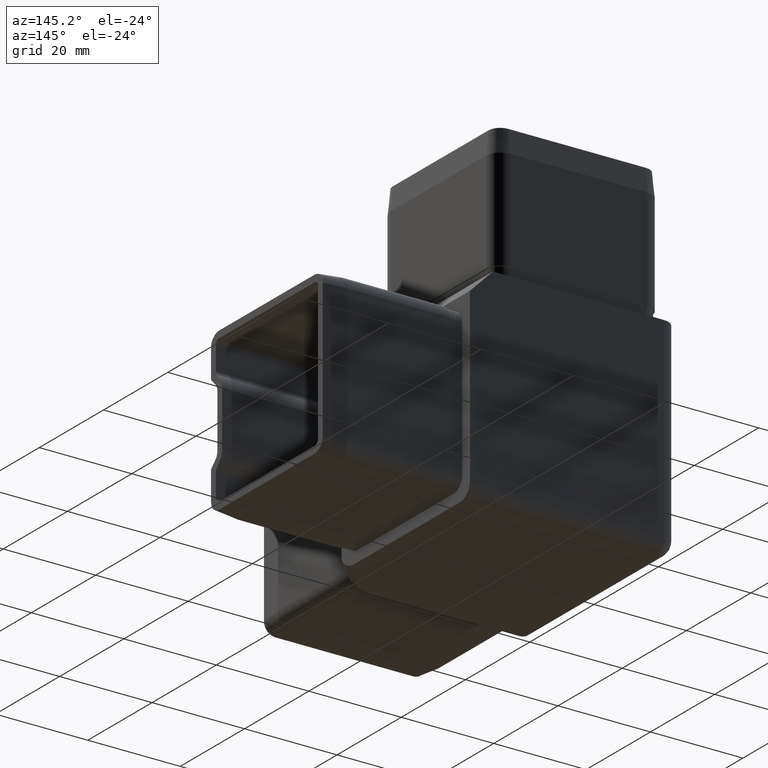
[diagram: clean part render]
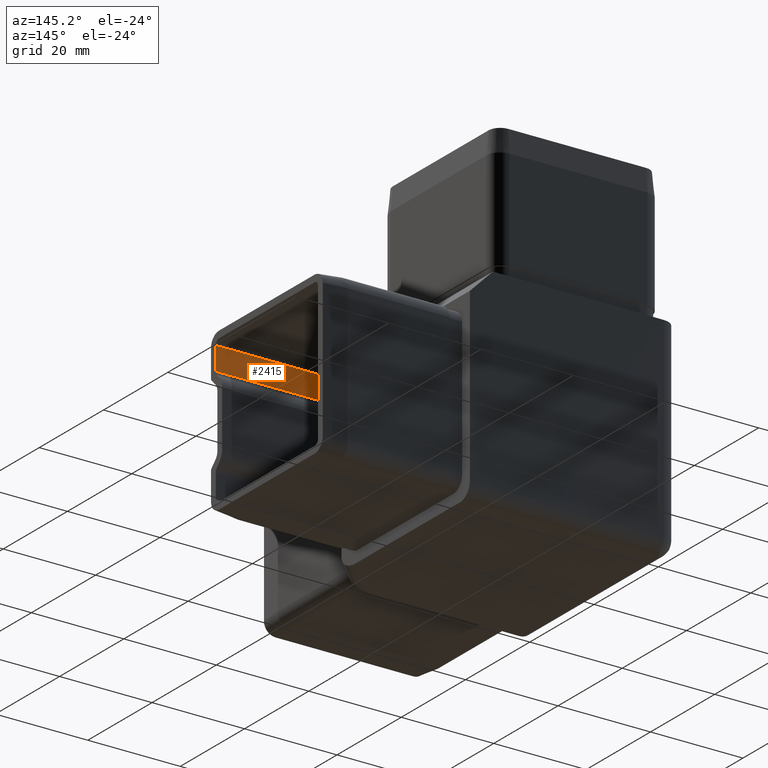
[diagram: same view with one face highlighted and labeled with its STEP entity id]
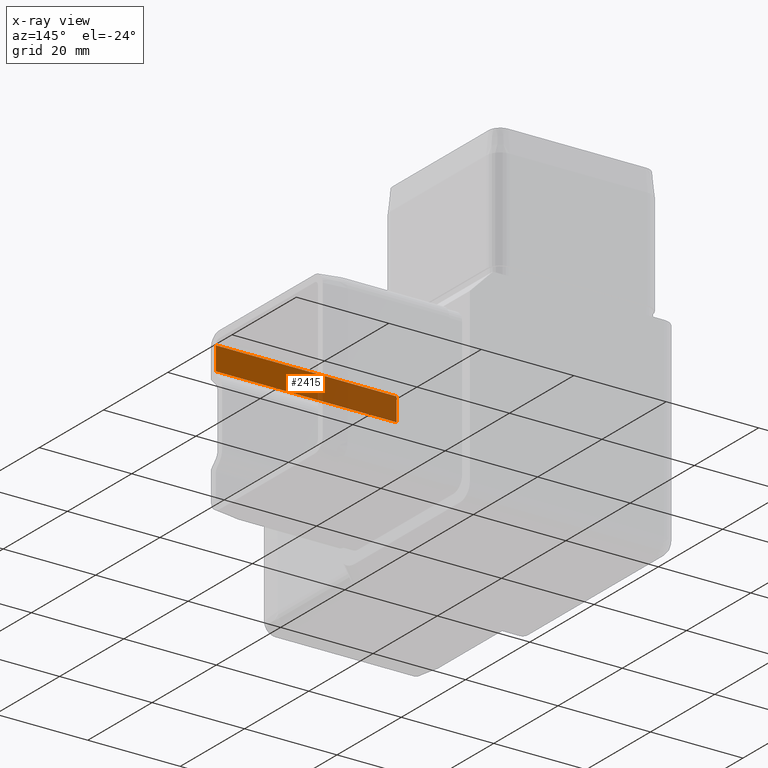
[diagram: x-ray of the same camera — body ghosted, the highlighted face saturated]
A machine part, auxiliary view. The second image highlights one B-rep face of the part: STEP entity #2415.
The next image is the same camera in x-ray: the body ghosted, the highlighted face saturated — about 43% of this face is hidden behind the body in this view.
In plain terms, the highlighted planar face has unit normal (0, -1, -0).
Its self-contained STEP definition (entity closure, byte-faithful):
#384 = LINE ( 'NONE', #748, #18516 ) ;
#600 = VECTOR ( 'NONE', #7622, 1000.000000000000000 ) ;
#748 = CARTESIAN_POINT ( 'NONE',  ( 13.40000000000001300, -13.40000000000000400, 12.39999999999999700 ) ) ;
#871 = AXIS2_PLACEMENT_3D ( 'NONE', #3484, #16545, #7848 ) ;
#1626 = DIRECTION ( 'NONE',  ( 2.220446049250312600E-016, -1.196361017915038700E-016, 1.000000000000000000 ) ) ;
#1883 = CARTESIAN_POINT ( 'NONE',  ( 52.50000000000000700, -13.39999999999999900, 12.39999999999998300 ) ) ;
#1969 = VECTOR ( 'NONE', #3322, 1000.000000000000000 ) ;
#2415 = ADVANCED_FACE ( 'NONE', ( #2814 ), #13536, .F. ) ;
#2814 = FACE_OUTER_BOUND ( 'NONE', #3323, .T. ) ;
#2965 = VERTEX_POINT ( 'NONE', #7164 ) ;
#3043 = CARTESIAN_POINT ( 'NONE',  ( 13.40000000000001300, -13.40000000000000400, 7.353518743592458100 ) ) ;
#3322 = DIRECTION ( 'NONE',  ( -1.000000000000000000, -1.196361017915039200E-016, 4.440892098500625200E-016 ) ) ;
#3323 = EDGE_LOOP ( 'NONE', ( #6367, #11183, #6211, #15748 ) ) ;
#3484 = CARTESIAN_POINT ( 'NONE',  ( 52.50000000000000700, -13.39999999999999700, 12.39999999999998300 ) ) ;
#4416 = CARTESIAN_POINT ( 'NONE',  ( 52.50000000000000700, -13.39999999999999700, 12.39999999999998300 ) ) ;
#6211 = ORIENTED_EDGE ( 'NONE', *, *, #13587, .F. ) ;
#6367 = ORIENTED_EDGE ( 'NONE', *, *, #13637, .T. ) ;
#6902 = VERTEX_POINT ( 'NONE', #3043 ) ;
#7164 = CARTESIAN_POINT ( 'NONE',  ( 52.50000000000000700, -13.39999999999999700, 7.353518743592445600 ) ) ;
#7381 = LINE ( 'NONE', #1883, #600 ) ;
#7622 = DIRECTION ( 'NONE',  ( -1.000000000000000000, -1.196361017915039200E-016, 4.440892098500625200E-016 ) ) ;
#7827 = LINE ( 'NONE', #16118, #1969 ) ;
#7848 = DIRECTION ( 'NONE',  ( 0.0000000000000000000, 1.196361017915039000E-016, -1.000000000000000000 ) ) ;
#8440 = EDGE_CURVE ( 'NONE', #2965, #8787, #12269, .T. ) ;
#8787 = VERTEX_POINT ( 'NONE', #15128 ) ;
#9510 = DIRECTION ( 'NONE',  ( 0.0000000000000000000, 0.0000000000000000000, -1.000000000000000000 ) ) ;
#11183 = ORIENTED_EDGE ( 'NONE', *, *, #13237, .F. ) ;
#12269 = LINE ( 'NONE', #4416, #17733 ) ;
#13237 = EDGE_CURVE ( 'NONE', #16352, #6902, #384, .T. ) ;
#13536 = PLANE ( 'NONE',  #871 ) ;
#13587 = EDGE_CURVE ( 'NONE', #8787, #16352, #7381, .T. ) ;
#13637 = EDGE_CURVE ( 'NONE', #2965, #6902, #7827, .T. ) ;
#15128 = CARTESIAN_POINT ( 'NONE',  ( 52.50000000000000700, -13.39999999999999900, 12.39999999999998300 ) ) ;
#15748 = ORIENTED_EDGE ( 'NONE', *, *, #8440, .F. ) ;
#16118 = CARTESIAN_POINT ( 'NONE',  ( 52.50000000000000700, -13.39999999999999700, 7.353518743592445600 ) ) ;
#16352 = VERTEX_POINT ( 'NONE', #18528 ) ;
#16545 = DIRECTION ( 'NONE',  ( 1.196361017915038700E-016, -1.000000000000000000, -1.196361017915039000E-016 ) ) ;
#17733 = VECTOR ( 'NONE', #1626, 1000.000000000000000 ) ;
#18516 = VECTOR ( 'NONE', #9510, 1000.000000000000000 ) ;
#18528 = CARTESIAN_POINT ( 'NONE',  ( 13.40000000000001300, -13.40000000000000400, 12.40000000000001500 ) ) ;